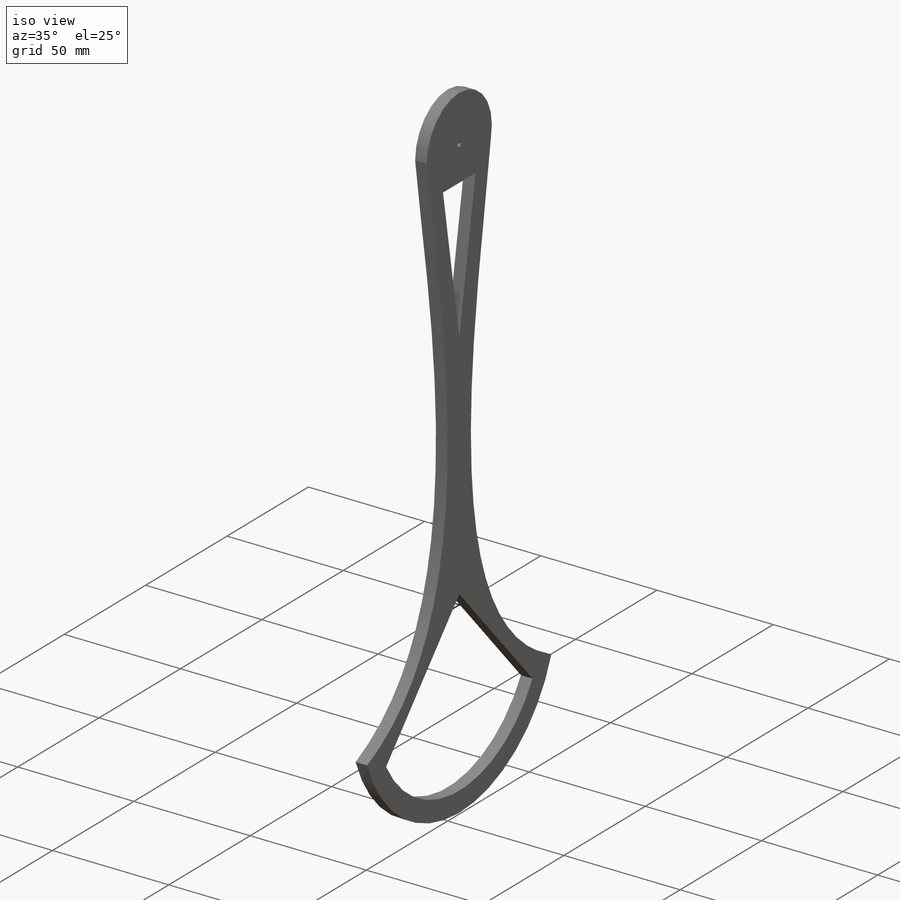
[diagram: iso view]
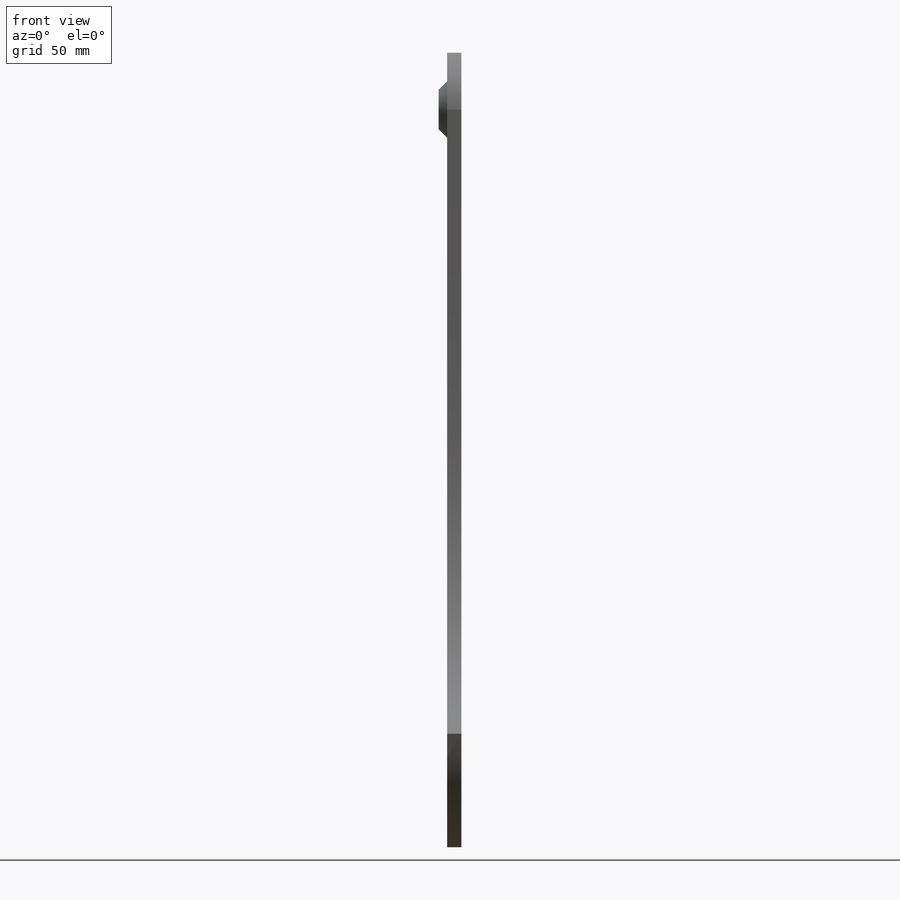
[diagram: front view]
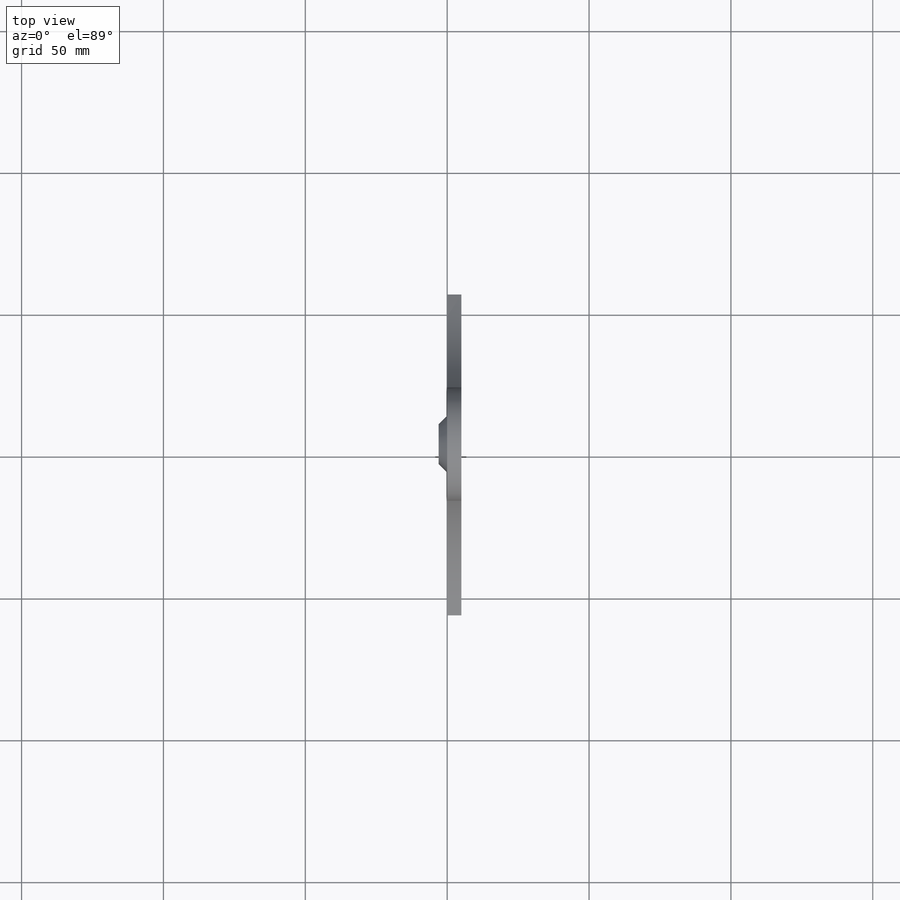
[diagram: top view]
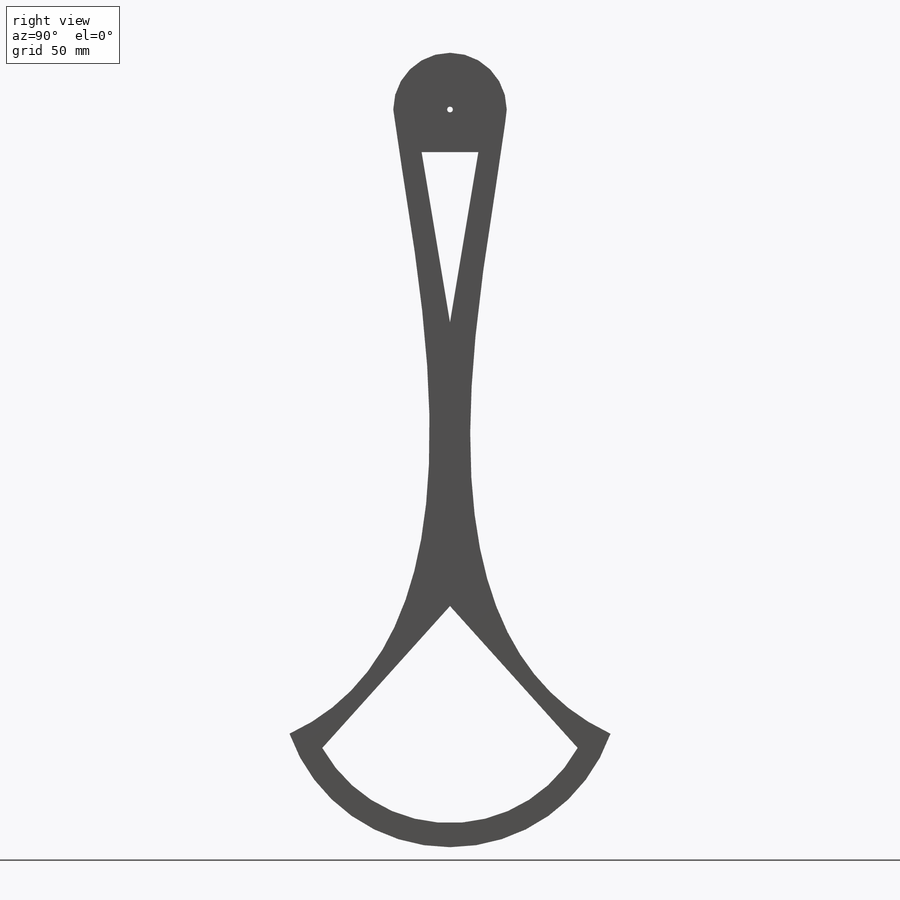
[diagram: right view]
SOLIDWORKS PART (.sldprt)
format: sldprt  version: not decoded by parser v0  size: 311,296 bytes
history: native  units: mm
features: plane x3, sketch x3, extrude x2, material x1, cut_extrude x1, chamfer x1 (+8 scaffold rows collapsed)
feature tree (19):
  scaffold x8  (default folders/planes/origin — collapsed)
  material  "Matériau <non spécifié>"
  plane  "Plan de face"
  plane  "Plan de dessus"
  plane  "Plan de droite"
  sketch  "Esquisse1"  dims[c1.D1=40.0mm c1.D5=60.0mm c1.D13=2.0mm c1.D14=20.0mm c1.D2=15.0mm c1.D3=100.0mm c1.D4=100.0mm c1.D6=20.0mm c1.D7=20.0mm c2.D6=~6.214511mm c3.D6=155.0deg c4.D6=5.0mm c4.D8=45.0mm c4.D9=25.0mm c4.D10=15.0mm c4.D11=20.0mm c4.D12=60.0mm c4.D4=175.0mm]
  extrude  "Boss.-Extru.1"  Depth=5mm
  sketch  "Esquisse2"  dims[D1=6.0mm]
  cut_extrude  "Enlèv. mat.-Extru.1"  Depth=2mm
  sketch  "Esquisse3"  dims[D1=20.0mm D2=6.0mm]
  extrude  "Boss.-Extru.2"  Depth=3mm
  chamfer  "Chanfrein1"  Distance=3mm Angle=45deg
decode coverage: 7 of 7 modeling features carry decoded parameters
note: ~ marks probable driven/reference dimensions
note: suppression state not decoded; provenance and decode notes live in map.json
